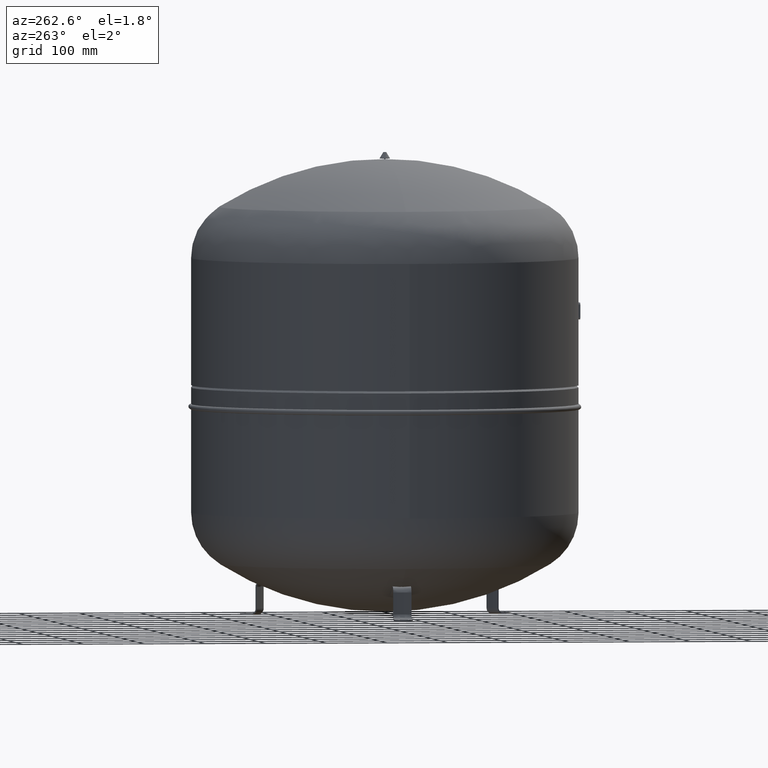
[diagram: clean part render]
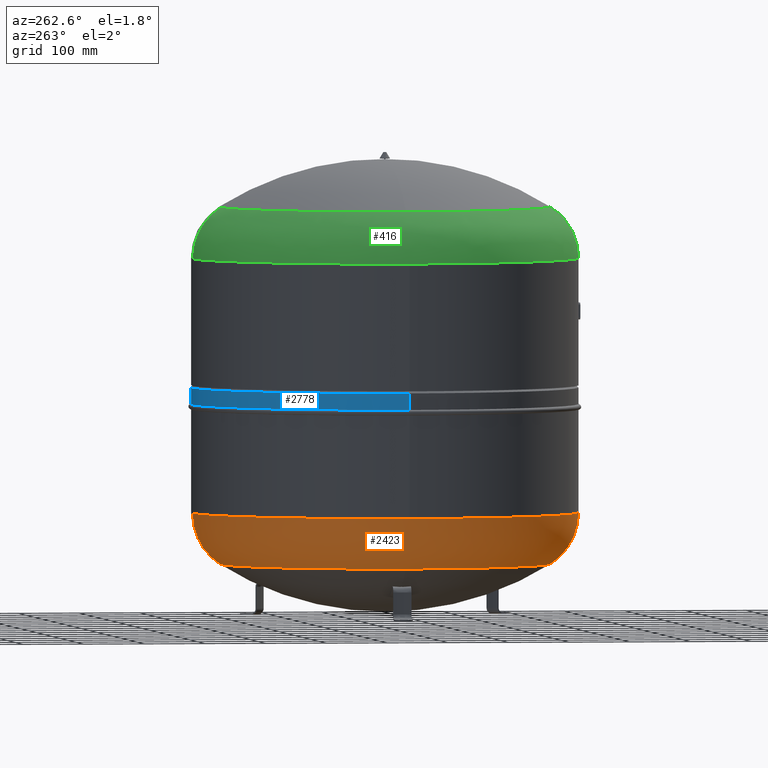
[diagram: same view with three faces highlighted in distinct colors, each labeled with its STEP entity id]
A machine part, auxiliary view with three faces highlighted in distinct colors.
Their STEP definitions:

[orange] entity #2423 — the highlighted toroidal blend (fillet) surface has major radius 218 mm and minor (blend) radius 99 mm.
#2328=CARTESIAN_POINT('',(-317.00000000000006,-2.971473E-014,169.75944937262858));
#2329=VERTEX_POINT('',#2328);
#2353=CARTESIAN_POINT('',(-3.882002E-014,317.0,169.75944937262869));
#2354=VERTEX_POINT('',#2353);
#2362=CARTESIAN_POINT('',(-1.556097E-014,-2.971473E-014,169.75944937262864));
#2363=DIRECTION('',(0.0,0.0,1.0));
#2364=DIRECTION('',(-1.0,0.0,0.0));
#2365=AXIS2_PLACEMENT_3D('',#2362,#2363,#2364);
#2366=CIRCLE('',#2365,317.00000000000006);
#2367=EDGE_CURVE('',#2354,#2329,#2366,.T.);
#2372=CARTESIAN_POINT('',(0.0,-2.971473E-014,169.75944937262867));
#2373=DIRECTION('',(-9.619823E-017,-1.836970E-016,1.0));
#2374=DIRECTION('',(0.0,-1.0,0.0));
#2375=AXIS2_PLACEMENT_3D('',#2372,#2373,#2374);
#2376=TOROIDAL_SURFACE('',#2375,218.0,99.0);
#2377=CARTESIAN_POINT('',(6.444462E-030,-317.00000000000011,169.75944937262858));
#2378=VERTEX_POINT('',#2377);
#2379=CARTESIAN_POINT('',(8.065826E-015,-270.63902439024383,85.91356031870238));
#2380=VERTEX_POINT('',#2379);
#2381=CARTESIAN_POINT('',(0.0,-218.00000000000003,169.75944937262864));
#2382=DIRECTION('',(1.0,0.0,0.0));
#2383=DIRECTION('',(0.0,-1.0,0.0));
#2384=AXIS2_PLACEMENT_3D('',#2381,#2382,#2383);
#2385=CIRCLE('',#2384,99.0);
#2386=EDGE_CURVE('',#2378,#2380,#2385,.T.);
#2387=ORIENTED_EDGE('',*,*,#2386,.F.);
#2388=CARTESIAN_POINT('',(-1.556097E-014,-2.971473E-014,169.75944937262864));
#2389=DIRECTION('',(0.0,0.0,1.0));
#2390=DIRECTION('',(-1.0,0.0,0.0));
#2391=AXIS2_PLACEMENT_3D('',#2388,#2389,#2390);
#2392=CIRCLE('',#2391,317.00000000000006);
#2393=EDGE_CURVE('',#2329,#2378,#2392,.T.);
#2394=ORIENTED_EDGE('',*,*,#2393,.F.);
#2395=ORIENTED_EDGE('',*,*,#2367,.F.);
#2396=CARTESIAN_POINT('',(-2.507680E-014,270.63902439024383,85.91356031870248));
#2397=VERTEX_POINT('',#2396);
#2398=CARTESIAN_POINT('',(-2.669642E-014,217.99999999999997,169.75944937262869));
#2399=DIRECTION('',(-1.0,0.0,0.0));
#2400=DIRECTION('',(0.0,1.0,0.0));
#2401=AXIS2_PLACEMENT_3D('',#2398,#2399,#2400);
#2402=CIRCLE('',#2401,99.0);
#2403=EDGE_CURVE('',#2354,#2397,#2402,.T.);
#2404=ORIENTED_EDGE('',*,*,#2403,.T.);
#2405=CARTESIAN_POINT('',(-270.63902439024383,-1.431249E-014,85.913560318702423));
#2406=VERTEX_POINT('',#2405);
#2407=CARTESIAN_POINT('',(-7.495146E-015,-1.431249E-014,85.913560318702437));
#2408=DIRECTION('',(0.0,0.0,1.0));
#2409=DIRECTION('',(-1.0,0.0,0.0));
#2410=AXIS2_PLACEMENT_3D('',#2407,#2408,#2409);
#2411=CIRCLE('',#2410,270.63902439024383);
#2412=EDGE_CURVE('',#2397,#2406,#2411,.T.);
#2413=ORIENTED_EDGE('',*,*,#2412,.T.);
#2414=CARTESIAN_POINT('',(-7.495146E-015,-1.431249E-014,85.913560318702437));
#2415=DIRECTION('',(0.0,0.0,1.0));
#2416=DIRECTION('',(-1.0,0.0,0.0));
#2417=AXIS2_PLACEMENT_3D('',#2414,#2415,#2416);
#2418=CIRCLE('',#2417,270.63902439024383);
#2419=EDGE_CURVE('',#2406,#2380,#2418,.T.);
#2420=ORIENTED_EDGE('',*,*,#2419,.T.);
#2421=EDGE_LOOP('',(#2387,#2394,#2395,#2404,#2413,#2420));
#2422=FACE_OUTER_BOUND('',#2421,.T.);
#2423=ADVANCED_FACE('',(#2422),#2376,.T.);

[blue] entity #2778 — the highlighted cylindrical surface (partial cylindrical patch) has radius 317 mm, axis along (0, 0, 1).
#2576=CARTESIAN_POINT('',(316.99999999999983,0.0,374.5));
#2577=VERTEX_POINT('',#2576);
#2593=CARTESIAN_POINT('',(-316.99999999999989,-3.882002E-014,374.5));
#2594=VERTEX_POINT('',#2593);
#2616=CARTESIAN_POINT('',(316.99999999999989,0.0,347.39999999999998));
#2617=VERTEX_POINT('',#2616);
#2618=CARTESIAN_POINT('',(316.99999999999989,0.0,374.5));
#2619=DIRECTION('',(0.0,0.0,-1.0));
#2620=VECTOR('',#2619,27.099999999999966);
#2621=LINE('',#2618,#2620);
#2622=EDGE_CURVE('',#2577,#2617,#2621,.T.);
#2625=CARTESIAN_POINT('',(-316.99999999999989,-3.882002E-014,347.40000000000003));
#2626=VERTEX_POINT('',#2625);
#2627=CARTESIAN_POINT('',(-316.99999999999989,-3.882002E-014,374.5));
#2628=DIRECTION('',(0.0,0.0,-1.0));
#2629=VECTOR('',#2628,27.099999999999966);
#2630=LINE('',#2627,#2629);
#2631=EDGE_CURVE('',#2594,#2626,#2630,.T.);
#2751=CARTESIAN_POINT('',(-2.455056E-015,0.0,347.40000000000003));
#2752=DIRECTION('',(0.0,0.0,1.0));
#2753=DIRECTION('',(1.0,0.0,0.0));
#2754=AXIS2_PLACEMENT_3D('',#2751,#2752,#2753);
#2755=CIRCLE('',#2754,316.99999999999989);
#2756=EDGE_CURVE('',#2617,#2626,#2755,.T.);
#2761=CARTESIAN_POINT('',(-1.367932E-015,0.0,360.95000000000005));
#2762=DIRECTION('',(8.023060E-017,0.0,1.0));
#2763=DIRECTION('',(1.0,0.0,0.0));
#2764=AXIS2_PLACEMENT_3D('',#2761,#2762,#2763);
#2765=CYLINDRICAL_SURFACE('',#2764,316.99999999999989);
#2766=ORIENTED_EDGE('',*,*,#2622,.T.);
#2767=ORIENTED_EDGE('',*,*,#2756,.T.);
#2768=ORIENTED_EDGE('',*,*,#2631,.F.);
#2769=CARTESIAN_POINT('',(-2.808071E-016,0.0,374.5));
#2770=DIRECTION('',(0.0,0.0,1.0));
#2771=DIRECTION('',(1.0,0.0,0.0));
#2772=AXIS2_PLACEMENT_3D('',#2769,#2770,#2771);
#2773=CIRCLE('',#2772,316.99999999999983);
#2774=EDGE_CURVE('',#2577,#2594,#2773,.T.);
#2775=ORIENTED_EDGE('',*,*,#2774,.F.);
#2776=EDGE_LOOP('',(#2766,#2767,#2768,#2775));
#2777=FACE_OUTER_BOUND('',#2776,.T.);
#2778=ADVANCED_FACE('',(#2777),#2765,.T.);

[green] entity #416 — the highlighted face is a freeform B-spline surface patch.
#153=CARTESIAN_POINT('',(-317.00000000000006,-2.971473E-014,586.24055062737148));
#154=VERTEX_POINT('',#153);
#178=CARTESIAN_POINT('',(9.762260E-031,-317.00000000000011,586.24055062737159));
#179=VERTEX_POINT('',#178);
#187=CARTESIAN_POINT('',(-1.556097E-014,-2.971473E-014,586.24055062737136));
#188=DIRECTION('',(0.0,0.0,1.0));
#189=DIRECTION('',(-1.0,0.0,0.0));
#190=AXIS2_PLACEMENT_3D('',#187,#188,#189);
#191=CIRCLE('',#190,317.00000000000006);
#192=EDGE_CURVE('',#154,#179,#191,.T.);
#250=CARTESIAN_POINT('',(8.065826E-015,-270.63902439024383,670.08643968129752));
#251=VERTEX_POINT('',#250);
#252=CARTESIAN_POINT('',(0.0,-218.00000000000003,586.24055062737148));
#253=DIRECTION('',(-1.0,0.0,0.0));
#254=DIRECTION('',(0.0,-1.0,0.0));
#255=AXIS2_PLACEMENT_3D('',#252,#253,#254);
#256=CIRCLE('',#255,99.0);
#257=EDGE_CURVE('',#179,#251,#256,.T.);
#260=CARTESIAN_POINT('',(-3.882002E-014,317.0,586.24055062737114));
#261=VERTEX_POINT('',#260);
#269=CARTESIAN_POINT('',(-2.507680E-014,270.63902439024383,670.08643968129752));
#270=VERTEX_POINT('',#269);
#271=CARTESIAN_POINT('',(-2.669642E-014,217.99999999999997,586.24055062737125));
#272=DIRECTION('',(1.0,0.0,0.0));
#273=DIRECTION('',(0.0,1.0,0.0));
#274=AXIS2_PLACEMENT_3D('',#271,#272,#273);
#275=CIRCLE('',#274,99.0);
#276=EDGE_CURVE('',#261,#270,#275,.T.);
#311=CARTESIAN_POINT('',(-270.63902439024383,-1.431249E-014,670.08643968129763));
#312=VERTEX_POINT('',#311);
#320=CARTESIAN_POINT('',(-7.495146E-015,-1.431249E-014,670.08643968129752));
#321=DIRECTION('',(0.0,0.0,1.0));
#322=DIRECTION('',(-1.0,0.0,0.0));
#323=AXIS2_PLACEMENT_3D('',#320,#321,#322);
#324=CIRCLE('',#323,270.63902439024383);
#325=EDGE_CURVE('',#312,#251,#324,.T.);
#338=CARTESIAN_POINT('',(-7.495146E-015,-1.431249E-014,670.08643968129752));
#339=DIRECTION('',(0.0,0.0,1.0));
#340=DIRECTION('',(-1.0,0.0,0.0));
#341=AXIS2_PLACEMENT_3D('',#338,#339,#340);
#342=CIRCLE('',#341,270.63902439024383);
#343=EDGE_CURVE('',#270,#312,#342,.T.);
#349=CARTESIAN_POINT('',(-1.457282E-014,119.0,586.24055062737091));
#350=CARTESIAN_POINT('',(-5.049191E-015,118.99999999999972,685.24055062737125));
#351=CARTESIAN_POINT('',(-1.717279E-014,217.99999999999997,685.24055062737125));
#352=CARTESIAN_POINT('',(-2.929640E-014,317.00000000000023,685.24055062737125));
#353=CARTESIAN_POINT('',(-3.882002E-014,316.99999999999994,586.24055062737091));
#354=CARTESIAN_POINT('',(-119.00000000000001,118.99999999999994,586.24055062737091));
#355=CARTESIAN_POINT('',(-118.99999999999969,118.99999999999966,685.24055062737125));
#356=CARTESIAN_POINT('',(-217.99999999999994,217.99999999999989,685.24055062737125));
#357=CARTESIAN_POINT('',(-317.00000000000023,317.00000000000011,685.24055062737125));
#358=CARTESIAN_POINT('',(-317.0,316.99999999999989,586.24055062737091));
#359=CARTESIAN_POINT('',(-119.00000000000003,-4.428754E-014,586.24055062737091));
#360=CARTESIAN_POINT('',(-118.99999999999972,-2.610154E-014,685.24055062737125));
#361=CARTESIAN_POINT('',(-217.99999999999997,-3.822514E-014,685.24055062737125));
#362=CARTESIAN_POINT('',(-317.00000000000023,-5.034875E-014,685.24055062737125));
#363=CARTESIAN_POINT('',(-317.0,-6.853475E-014,586.24055062737102));
#364=CARTESIAN_POINT('',(-118.99999999999999,-119.00000000000004,586.24055062737091));
#365=CARTESIAN_POINT('',(-118.99999999999966,-118.99999999999972,685.24055062737125));
#366=CARTESIAN_POINT('',(-217.99999999999989,-217.99999999999994,685.24055062737125));
#367=CARTESIAN_POINT('',(-317.00000000000011,-317.00000000000023,685.24055062737125));
#368=CARTESIAN_POINT('',(-316.99999999999989,-317.0,586.24055062737114));
#369=CARTESIAN_POINT('',(1.457282E-014,-119.00000000000006,586.24055062737091));
#370=CARTESIAN_POINT('',(2.409644E-014,-118.99999999999973,685.24055062737125));
#371=CARTESIAN_POINT('',(3.622004E-014,-217.99999999999997,685.24055062737125));
#372=CARTESIAN_POINT('',(4.834365E-014,-317.00000000000023,685.24055062737125));
#373=CARTESIAN_POINT('',(3.882002E-014,-317.00000000000006,586.24055062737114));
#374=CARTESIAN_POINT('',(119.00000000000001,-119.00000000000001,586.24055062737091));
#375=CARTESIAN_POINT('',(118.99999999999972,-118.99999999999969,685.24055062737125));
#376=CARTESIAN_POINT('',(217.99999999999994,-217.99999999999989,685.24055062737125));
#377=CARTESIAN_POINT('',(317.00000000000023,-317.00000000000017,685.24055062737125));
#378=CARTESIAN_POINT('',(317.0,-316.99999999999994,586.24055062737114));
#379=CARTESIAN_POINT('',(119.00000000000003,-1.514191E-014,586.24055062737091));
#380=CARTESIAN_POINT('',(118.99999999999973,3.044092E-015,685.24055062737125));
#381=CARTESIAN_POINT('',(217.99999999999997,1.516769E-014,685.24055062737125));
#382=CARTESIAN_POINT('',(317.00000000000023,2.729130E-014,685.24055062737125));
#383=CARTESIAN_POINT('',(317.0,9.105293E-015,586.24055062737102));
#384=CARTESIAN_POINT('',(118.99999999999999,118.99999999999999,586.24055062737091));
#385=CARTESIAN_POINT('',(118.99999999999969,118.99999999999969,685.24055062737125));
#386=CARTESIAN_POINT('',(217.99999999999989,217.99999999999994,685.24055062737125));
#387=CARTESIAN_POINT('',(317.00000000000011,317.00000000000017,685.24055062737125));
#388=CARTESIAN_POINT('',(316.99999999999989,316.99999999999994,586.24055062737091));
#389=CARTESIAN_POINT('',(-1.457282E-014,119.0,586.24055062737091));
#390=CARTESIAN_POINT('',(-5.049191E-015,118.99999999999972,685.24055062737125));
#391=CARTESIAN_POINT('',(-1.717279E-014,217.99999999999997,685.24055062737125));
#392=CARTESIAN_POINT('',(-2.929640E-014,317.00000000000023,685.24055062737125));
#393=CARTESIAN_POINT('',(-3.882002E-014,316.99999999999994,586.24055062737091));
#401=(BOUNDED_SURFACE()B_SPLINE_SURFACE(2,2,((#349,#354,#359,#364,#369,#374,#379,#384,#389),(#350,#355,#360,#365,#370,#375,#380,#385,#390),(#351,#356,#361,#366,#371,#376,#381,#386,#391),(#352,#357,#362,#367,#372,#377,#382,#387,#392),(#353,#358,#363,#368,#373,#378,#383,#388,#393)),.UNSPECIFIED.,.F.,.T.,.U.)B_SPLINE_SURFACE_WITH_KNOTS((3,2,3),(3,2,2,2,3),(-3.141592653589796,-1.570796326794897,3.192934E-015),(0.0,1.570796326794897,3.141592653589793,4.71238898038469,6.283185307179586),.UNSPECIFIED.)GEOMETRIC_REPRESENTATION_ITEM()RATIONAL_B_SPLINE_SURFACE(((1.0,0.707106781186548,1.0,0.707106781186548,1.0,0.707106781186548,1.0,0.707106781186548,1.0),(0.707106781186546,0.499999999999999,0.707106781186546,0.499999999999999,0.707106781186546,0.499999999999999,0.707106781186546,0.499999999999999,0.707106781186546),(1.0,0.707106781186548,1.0,0.707106781186548,1.0,0.707106781186548,1.0,0.707106781186548,1.0),(0.707106781186547,0.499999999999999,0.707106781186547,0.499999999999999,0.707106781186547,0.499999999999999,0.707106781186547,0.499999999999999,0.707106781186547),(1.0,0.707106781186548,1.0,0.707106781186548,1.0,0.707106781186548,1.0,0.707106781186548,1.0)))REPRESENTATION_ITEM('')SURFACE());
#402=ORIENTED_EDGE('',*,*,#257,.T.);
#403=ORIENTED_EDGE('',*,*,#325,.F.);
#404=ORIENTED_EDGE('',*,*,#343,.F.);
#405=ORIENTED_EDGE('',*,*,#276,.F.);
#406=CARTESIAN_POINT('',(-1.556097E-014,-2.971473E-014,586.24055062737136));
#407=DIRECTION('',(0.0,0.0,1.0));
#408=DIRECTION('',(-1.0,0.0,0.0));
#409=AXIS2_PLACEMENT_3D('',#406,#407,#408);
#410=CIRCLE('',#409,317.00000000000006);
#411=EDGE_CURVE('',#261,#154,#410,.T.);
#412=ORIENTED_EDGE('',*,*,#411,.T.);
#413=ORIENTED_EDGE('',*,*,#192,.T.);
#414=EDGE_LOOP('',(#402,#403,#404,#405,#412,#413));
#415=FACE_OUTER_BOUND('',#414,.T.);
#416=ADVANCED_FACE('',(#415),#401,.T.);